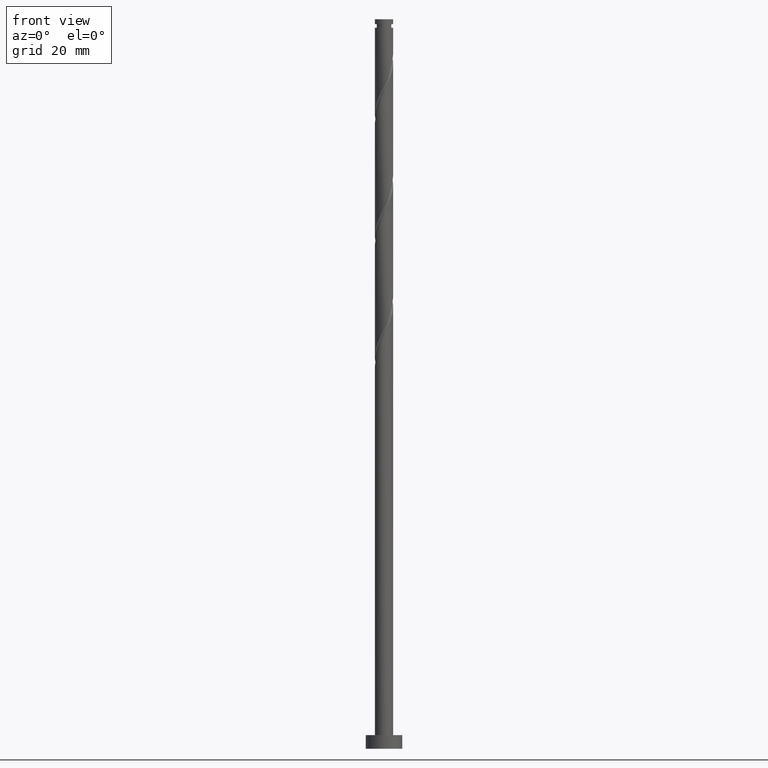
[diagram: clean part render]
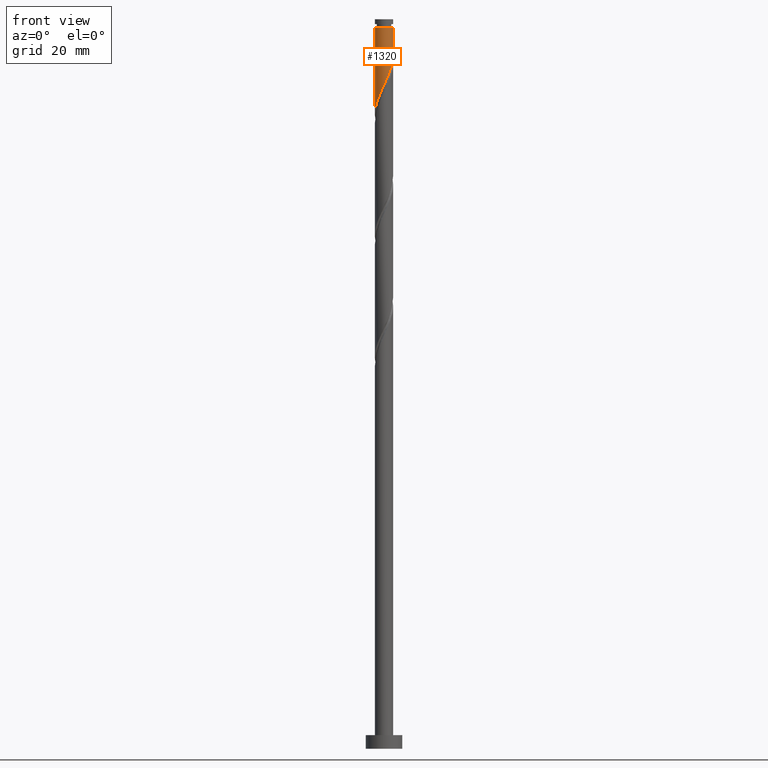
[diagram: same view with one face highlighted and labeled with its STEP entity id]
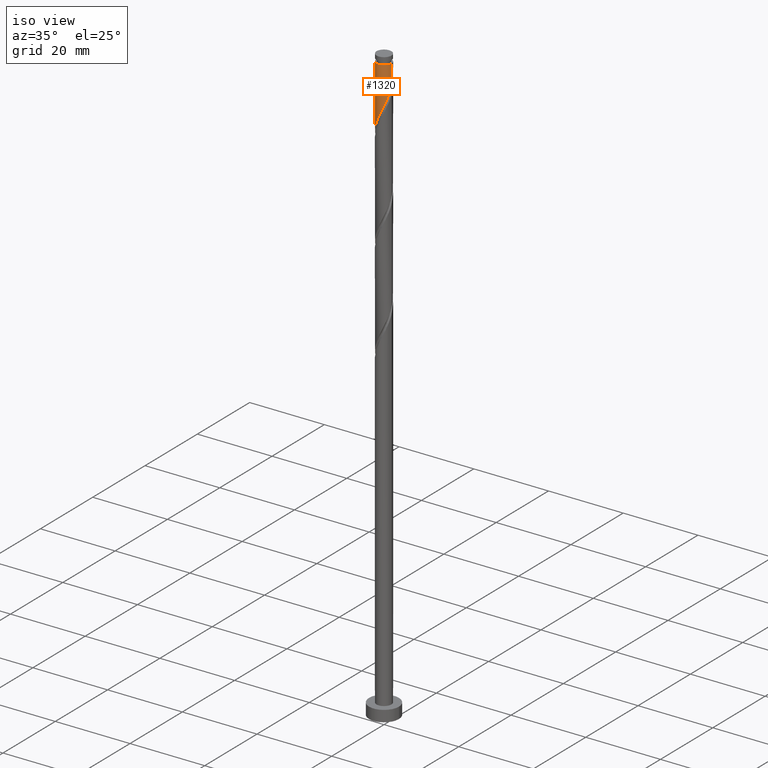
[diagram: same view with one face highlighted and labeled with its STEP entity id]
A machine part, front view. The second image highlights one B-rep face of the part: STEP entity #1320.
A second angle (iso view) of the same face is appended — the face is thin or edge-on in the first view.
In plain terms, the highlighted cylindrical surface (edge-blend (fillet) strip) has radius 2 mm, axis along (-0, -0, -1).
Its self-contained STEP definition (entity closure, byte-faithful):
#14 = CARTESIAN_POINT ( 'NONE',  ( -2.000000000000000000, -3.746683586225840659E-15, 138.9627253085059522 ) ) ;
#46 = CARTESIAN_POINT ( 'NONE',  ( -0.1161895186125010554, -2.017223038501448240, 145.3859981019323016 ) ) ;
#48 = DIRECTION ( 'NONE',  ( -1.000000000000000000, 0.000000000000000000, 0.000000000000000000 ) ) ;
#101 = CARTESIAN_POINT ( 'NONE',  ( 0.000000000000000000, 0.000000000000000000, 160.0000000000000000 ) ) ;
#238 = CYLINDRICAL_SURFACE ( 'NONE', #1033, 2.000000000000000000 ) ;
#247 = CARTESIAN_POINT ( 'NONE',  ( 1.883409435608316418, -0.6728810428757546758, 150.8405435564777690 ) ) ;
#255 = CARTESIAN_POINT ( 'NONE',  ( 0.7248413235775363894, -1.864029252891264754, 147.2041799201141714 ) ) ;
#258 = ORIENTED_EDGE ( 'NONE', *, *, #1422, .F. ) ;
#262 = LINE ( 'NONE', #600, #1145 ) ;
#273 = EDGE_CURVE ( 'NONE', #646, #1271, #1367, .T. ) ;
#319 = ORIENTED_EDGE ( 'NONE', *, *, #930, .T. ) ;
#376 = CARTESIAN_POINT ( 'NONE',  ( 1.980155124014550738, -0.4020876473299555554, 151.4466041625384207 ) ) ;
#382 = CARTESIAN_POINT ( 'NONE',  ( 1.220637884402353990, -1.584311571365224047, 148.4163011322353896 ) ) ;
#385 = CARTESIAN_POINT ( 'NONE',  ( 1.999999999999993117, 2.449293598294701977E-16, 158.1132708292050779 ) ) ;
#394 = ORIENTED_EDGE ( 'NONE', *, *, #1395, .T. ) ;
#409 = CARTESIAN_POINT ( 'NONE',  ( -2.000000000000000000, -3.746683586225840659E-15, 138.9627253085059522 ) ) ;
#418 = CARTESIAN_POINT ( 'NONE',  ( -1.948211798543800555, -0.4521844623765077231, 139.9314526473869194 ) ) ;
#485 = DIRECTION ( 'NONE',  ( -0.000000000000000000, -0.000000000000000000, -1.000000000000000000 ) ) ;
#492 = CARTESIAN_POINT ( 'NONE',  ( 1.996690616564939402, -0.1150068768444773015, 152.0526647685990156 ) ) ;
#536 = CARTESIAN_POINT ( 'NONE',  ( -2.000000000000000888, -0.2290578547702419865, 139.4486852614772374 ) ) ;
#544 = CARTESIAN_POINT ( 'NONE',  ( -0.3979949748426485634, -1.959999999999999964, 144.7799374958717351 ) ) ;
#554 = CARTESIAN_POINT ( 'NONE',  ( -0.6798004310727959743, -1.902776961498551689, 144.1738768898111118 ) ) ;
#600 = CARTESIAN_POINT ( 'NONE',  ( -2.000000000000000000, 0.000000000000000000, 160.0000000000000000 ) ) ;
#619 = CARTESIAN_POINT ( 'NONE',  ( 1.617545623245911779, -1.176242388590886589, 149.6284223443565509 ) ) ;
#638 = CARTESIAN_POINT ( 'NONE',  ( -1.741900447066338398, -0.9827425057002936448, 141.1435738595081375 ) ) ;
#646 = VERTEX_POINT ( 'NONE', #385 ) ;
#665 = CARTESIAN_POINT ( 'NONE',  ( -1.394470680848406641, -1.433684595806966167, 142.3556950716293557 ) ) ;
#724 = CARTESIAN_POINT ( 'NONE',  ( 2.000000000000000000, 2.449293598294706414E-16, 160.0000000000000000 ) ) ;
#751 = CARTESIAN_POINT ( 'NONE',  ( 0.4568343776401059819, -1.968245701812300963, 146.5981193140535765 ) ) ;
#759 = DIRECTION ( 'NONE',  ( -0.000000000000000000, -0.000000000000000000, -1.000000000000000000 ) ) ;
#815 = CARTESIAN_POINT ( 'NONE',  ( -1.999999999999993117, 0.000000000000000000, 158.1132708292050779 ) ) ;
#843 = VECTOR ( 'NONE', #485, 1000.000000000000000 ) ;
#862 = VERTEX_POINT ( 'NONE', #409 ) ;
#876 = VERTEX_POINT ( 'NONE', #815 ) ;
#881 = CARTESIAN_POINT ( 'NONE',  ( 0.9928482695149669635, -1.759812803970227657, 147.8102405261747947 ) ) ;
#925 = CARTESIAN_POINT ( 'NONE',  ( -0.9340691933046016970, -1.768478086411955141, 143.5678162837504885 ) ) ;
#926 = CARTESIAN_POINT ( 'NONE',  ( 0.000000000000000000, 0.000000000000000000, 158.1132708292050779 ) ) ;
#930 = EDGE_CURVE ( 'NONE', #646, #876, #1362, .T. ) ;
#971 = CARTESIAN_POINT ( 'NONE',  ( 2.000000000000000000, 5.608807763811138228E-16, 152.2960586418392950 ) ) ;
#1008 = DIRECTION ( 'NONE',  ( -0.000000000000000000, -0.000000000000000000, -1.000000000000000000 ) ) ;
#1033 = AXIS2_PLACEMENT_3D ( 'NONE', #101, #759, #1397 ) ;
#1039 = CARTESIAN_POINT ( 'NONE',  ( -1.600603406160404640, -1.233189980288572629, 141.7496344655687324 ) ) ;
#1049 = CARTESIAN_POINT ( 'NONE',  ( -1.188337955536407531, -1.634179211325358594, 142.9617556776898937 ) ) ;
#1061 = CARTESIAN_POINT ( 'NONE',  ( -1.883197487972271711, -0.7322950311120139943, 140.5375132534475142 ) ) ;
#1126 = CARTESIAN_POINT ( 'NONE',  ( 2.000000000000000000, 5.608807763811138228E-16, 152.2960586418392950 ) ) ;
#1134 = CARTESIAN_POINT ( 'NONE',  ( 1.448427499289742126, -1.408810338760219993, 149.0223617382959560 ) ) ;
#1141 = CARTESIAN_POINT ( 'NONE',  ( 0.1703224295138019428, -1.992734370156874713, 145.9920587079929817 ) ) ;
#1145 = VECTOR ( 'NONE', #1008, 1000.000000000000000 ) ;
#1254 = CARTESIAN_POINT ( 'NONE',  ( 1.786663747202081876, -0.9436744384215538517, 150.2344829504172026 ) ) ;
#1259 = FACE_OUTER_BOUND ( 'NONE', #1605, .T. ) ;
#1271 = VERTEX_POINT ( 'NONE', #971 ) ;
#1277 = ORIENTED_EDGE ( 'NONE', *, *, #273, .F. ) ;
#1320 = ADVANCED_FACE ( 'NONE', ( #1259 ), #238, .T. ) ;
#1362 = CIRCLE ( 'NONE', #1435, 1.999999999999993117 ) ;
#1367 = LINE ( 'NONE', #724, #843 ) ;
#1395 = EDGE_CURVE ( 'NONE', #876, #862, #262, .T. ) ;
#1397 = DIRECTION ( 'NONE',  ( -1.000000000000000000, 0.000000000000000000, 0.000000000000000000 ) ) ;
#1422 = EDGE_CURVE ( 'NONE', #1271, #862, #1487, .T. ) ;
#1431 = DIRECTION ( 'NONE',  ( -0.000000000000000000, -0.000000000000000000, -1.000000000000000000 ) ) ;
#1435 = AXIS2_PLACEMENT_3D ( 'NONE', #926, #1431, #48 ) ;
#1487 =( BOUNDED_CURVE ( )  B_SPLINE_CURVE ( 2, ( #1126, #1639, #492, #376, #247, #1254, #619, #1134, #382, #881, #255, #751, #1141, #46, #544, #554, #925, #1049, #665, #1039, #638, #1061, #418, #536, #14 ),
 .UNSPECIFIED., .F., .T. ) 
 B_SPLINE_CURVE_WITH_KNOTS ( ( 3, 2, 2, 2, 2, 2, 2, 2, 2, 2, 2, 2, 3 ),
 ( 0.3045252162417514397, 0.3068181818181818232, 0.3181818181818181768, 0.3295454545454545303, 0.3409090909090908839, 0.3522727272727272929, 0.3636363636363636465, 0.3750000000000000000, 0.3863636363636363535, 0.3977272727272727071, 0.4090909090909091161, 0.4204545454545454697, 0.4295252162417514952 ),
 .UNSPECIFIED. ) 
 CURVE ( )  GEOMETRIC_REPRESENTATION_ITEM ( )  RATIONAL_B_SPLINE_CURVE ( ( 0.9061101570135633443, 0.9072237824201454526, 0.9090909090909228274, 0.8998376744372251768, 0.9090909090909228274, 0.8998376744372251768, 0.9090909090909228274, 0.8998376744372251768, 0.9090909090909228274, 0.8998376744372251768, 0.9090909090909228274, 0.8998376744372251768, 0.9090909090909228274, 0.8998376744372251768, 0.9090909090909228274, 0.8998376744372251768, 0.9090909090909228274, 0.8998376744372251768, 0.9090909090909228274, 0.8998376744372251768, 0.9090909090909228274, 0.8998376744372251768, 0.9090909090909228274, 0.9017048011080025516, 0.9061101570135633443 ) ) 
 REPRESENTATION_ITEM ( '' )  );
#1605 = EDGE_LOOP ( 'NONE', ( #1277, #319, #394, #258 ) ) ;
#1639 = CARTESIAN_POINT ( 'NONE',  ( 2.000000000000000000, -0.05755105304764768920, 152.1739606371210698 ) ) ;